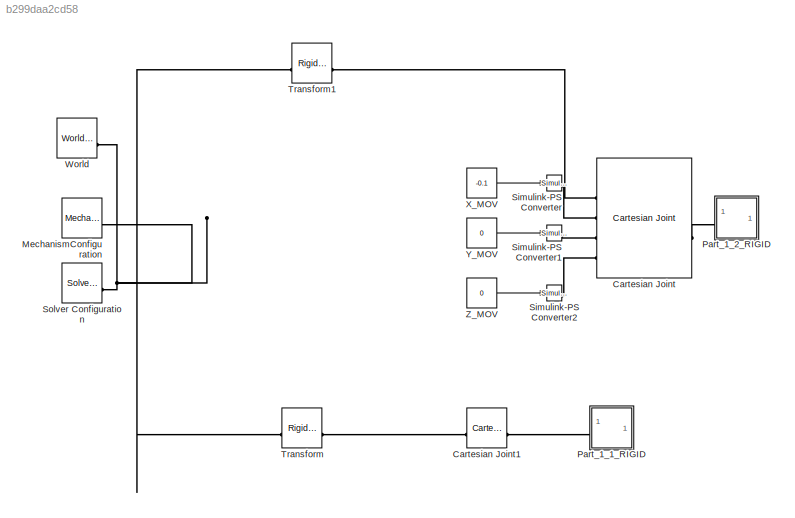
MODEL slx_b299daa2cd58
KIND model
CONFIG AbsTol = auto
CONFIG EnableMultiTasking = off
CONFIG FixedStep = auto
CONFIG MaxStep = auto
CONFIG MinStep = auto
CONFIG RelTol = 1e-3
CONFIG SampleTimeConstraint = Unconstrained
CONFIG SolverName = VariableStepAuto
CONFIG StartTime = 0.0
CONFIG StopTime = inf
WORKSPACE source: external: MATLAB File  (data not in archive)
BLOCK [Reference] Cartesian Joint  REF=sm_lib/Joints/Cartesian
Joint
  SourceBlock = sm_lib/Joints/Cartesian\nJoint
  SourceType = Cartesian\nJoint
BLOCK [Reference] Cartesian Joint1  REF=sm_lib/Joints/Cartesian
Joint
  SourceBlock = sm_lib/Joints/Cartesian\nJoint
  SourceType = Cartesian\nJoint
BLOCK [Reference] MechanismConfiguration  REF=sm_lib/Utilities/Mechanism
Configuration
  SourceBlock = sm_lib/Utilities/Mechanism\nConfiguration
  SourceType = Mechanism\nConfiguration
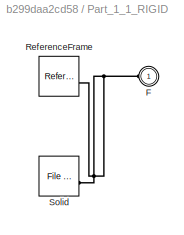
BLOCK [SubSystem] Part_1_1_RIGID
BLOCK [PMIOPort] Part_1_1_RIGID/F
  Side = Left
BLOCK [Reference] Part_1_1_RIGID/ReferenceFrame  REF=sm_lib/Frames and
Transforms/Reference
Frame
  SourceBlock = sm_lib/Frames and\nTransforms/Reference\nFrame
  SourceType = Reference\nFrame
BLOCK [Reference] Part_1_1_RIGID/Solid  REF=sm_lib/Body Elements/File Solid
  SourceBlock = sm_lib/Body Elements/File Solid
  SourceType = File Solid
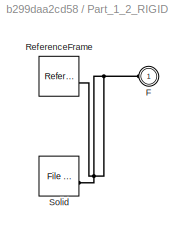
BLOCK [SubSystem] Part_1_2_RIGID
BLOCK [PMIOPort] Part_1_2_RIGID/F
  Side = Left
BLOCK [Reference] Part_1_2_RIGID/ReferenceFrame  REF=sm_lib/Frames and
Transforms/Reference
Frame
  SourceBlock = sm_lib/Frames and\nTransforms/Reference\nFrame
  SourceType = Reference\nFrame
BLOCK [Reference] Part_1_2_RIGID/Solid  REF=sm_lib/Body Elements/File Solid
  SourceBlock = sm_lib/Body Elements/File Solid
  SourceType = File Solid
BLOCK [Reference] Simulink-PS Converter  REF=nesl_utility/Simulink-PS
Converter
  SourceBlock = nesl_utility/Simulink-PS\nConverter
  SourceType = Simulink-PS\nConverter
BLOCK [Reference] Simulink-PS Converter1  REF=nesl_utility/Simulink-PS
Converter
  SourceBlock = nesl_utility/Simulink-PS\nConverter
  SourceType = Simulink-PS\nConverter
BLOCK [Reference] Simulink-PS Converter2  REF=nesl_utility/Simulink-PS
Converter
  SourceBlock = nesl_utility/Simulink-PS\nConverter
  SourceType = Simulink-PS\nConverter
BLOCK [Reference] Solver Configuration  REF=nesl_utility/Solver
Configuration
  SourceBlock = nesl_utility/Solver\nConfiguration
  SourceType = Solver\nConfiguration
BLOCK [Reference] Transform  REF=sm_lib/Frames and
Transforms/Rigid
Transform
  SourceBlock = sm_lib/Frames and\nTransforms/Rigid\nTransform
  SourceType = Rigid\nTransform
BLOCK [Reference] Transform1  REF=sm_lib/Frames and
Transforms/Rigid
Transform
  SourceBlock = sm_lib/Frames and\nTransforms/Rigid\nTransform
  SourceType = Rigid\nTransform
BLOCK [Reference] World  REF=sm_lib/Frames and
Transforms/World Frame
  SourceBlock = sm_lib/Frames and\nTransforms/World Frame
  SourceType = World Frame
BLOCK [Constant] X_MOV
  Value = -0.1
BLOCK [Constant] Y_MOV
  Value = 0
BLOCK [Constant] Z_MOV
  Value = 0
LINE X_MOV:1 -> Simulink-PS Converter:1
LINE Y_MOV:1 -> Simulink-PS Converter1:1
LINE Z_MOV:1 -> Simulink-PS Converter2:1
PLINE Cartesian Joint1:LConn1 -- Transform:RConn1
PLINE Cartesian Joint1:RConn1 -- Part_1_1_RIGID:LConn1
PLINE Cartesian Joint:LConn1 -- Transform1:RConn1
PLINE Cartesian Joint:LConn2 -- Simulink-PS Converter:RConn1
PLINE Cartesian Joint:LConn3 -- Simulink-PS Converter1:RConn1
PLINE Cartesian Joint:LConn4 -- Simulink-PS Converter2:RConn1
PLINE Cartesian Joint:RConn1 -- Part_1_2_RIGID:LConn1
PNET net1: MechanismConfiguration:RConn1 -- Solver Configuration:RConn1 -- Transform1:LConn1 -- Transform:LConn1 -- World:RConn1
PNET net2: Part_1_1_RIGID/F:RConn1 -- Part_1_1_RIGID/ReferenceFrame:RConn1 -- Part_1_1_RIGID/Solid:RConn1
PNET net3: Part_1_2_RIGID/F:RConn1 -- Part_1_2_RIGID/ReferenceFrame:RConn1 -- Part_1_2_RIGID/Solid:RConn1
note: PNET lines group multi-terminal physical nets as a canonical sorted terminal list (undirected conserving connections); 2-terminal nets keep the pairwise PLINE form
